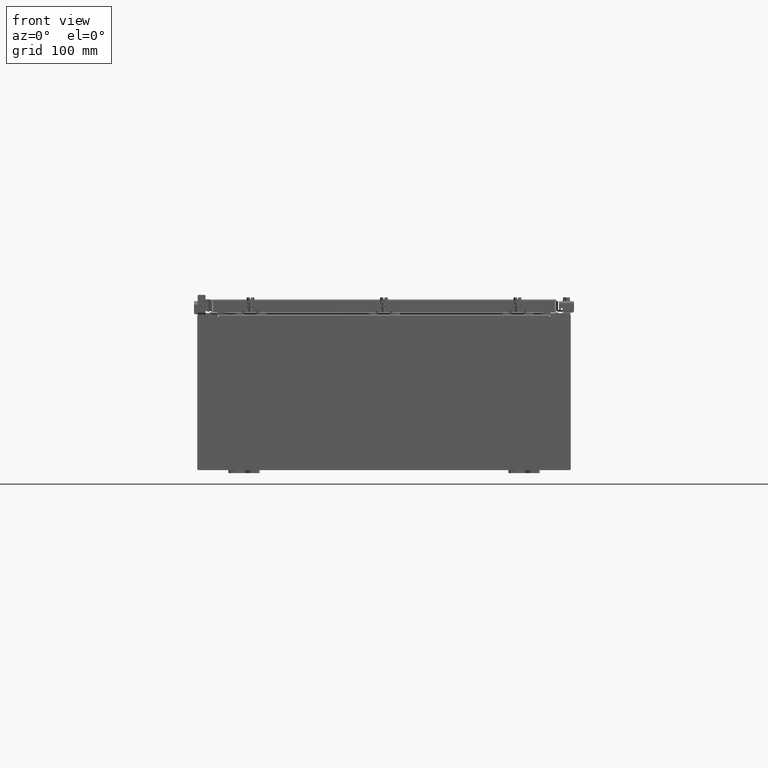
[diagram: clean part render]
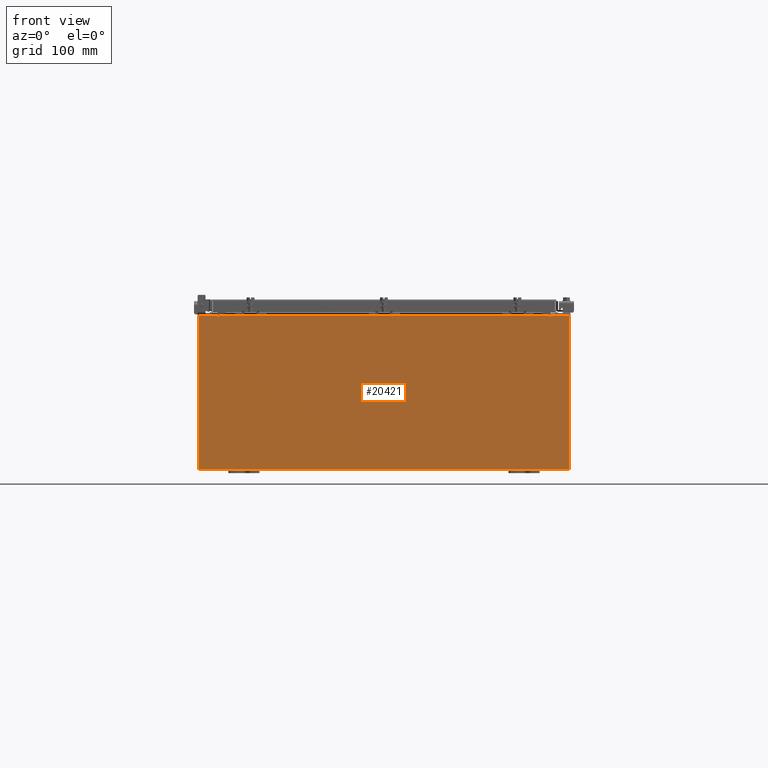
[diagram: same view with one face highlighted and labeled with its STEP entity id]
A machine part, front view. The second image highlights one B-rep face of the part: STEP entity #20421.
In plain terms, the highlighted planar face has unit normal (-0, 1, -0).
Its self-contained STEP definition (entity closure, byte-faithful):
#22 = VERTEX_POINT ( 'NONE', #7945 ) ;
#561 = VECTOR ( 'NONE', #16933, 39.37007874015748100 ) ;
#587 = EDGE_CURVE ( 'NONE', #22, #10335, #10211, .T. ) ;
#599 = EDGE_CURVE ( 'NONE', #18800, #10335, #5388, .T. ) ;
#608 = VECTOR ( 'NONE', #15508, 39.37007874015748100 ) ;
#615 = CARTESIAN_POINT ( 'NONE',  ( 10.67454999999979000, -0.0000000000000000000, -4.633366117301795800E-013 ) ) ;
#950 = VERTEX_POINT ( 'NONE', #21251 ) ;
#1480 = VERTEX_POINT ( 'NONE', #11631 ) ;
#1790 = CARTESIAN_POINT ( 'NONE',  ( -11.92530000000000000, 0.0000000000000000000, 4.925300000000000000 ) ) ;
#2034 = VERTEX_POINT ( 'NONE', #18036 ) ;
#2138 = CIRCLE ( 'NONE', #5846, 0.01867499999999949400 ) ;
#2236 = LINE ( 'NONE', #615, #11308 ) ;
#2354 = AXIS2_PLACEMENT_3D ( 'NONE', #11561, #16982, #6180 ) ;
#2421 = DIRECTION ( 'NONE',  ( -4.340572780400004900E-014, 0.0000000000000000000, -1.000000000000000000 ) ) ;
#2478 = DIRECTION ( 'NONE',  ( 1.000000000000000000, 0.0000000000000000000, 0.0000000000000000000 ) ) ;
#2857 = ORIENTED_EDGE ( 'NONE', *, *, #18849, .F. ) ;
#3317 = EDGE_CURVE ( 'NONE', #17542, #950, #12472, .T. ) ;
#3321 = VECTOR ( 'NONE', #4039, 39.37007874015748100 ) ;
#3327 = EDGE_CURVE ( 'NONE', #20892, #16663, #2236, .T. ) ;
#3699 = VERTEX_POINT ( 'NONE', #12591 ) ;
#3850 = AXIS2_PLACEMENT_3D ( 'NONE', #9045, #21646, #10897 ) ;
#3915 = VECTOR ( 'NONE', #15171, 39.37007874015748100 ) ;
#4039 = DIRECTION ( 'NONE',  ( -0.0000000000000000000, -0.0000000000000000000, 1.000000000000000000 ) ) ;
#4135 = VECTOR ( 'NONE', #7178, 39.37007874015748100 ) ;
#4292 = CARTESIAN_POINT ( 'NONE',  ( -11.92530000000000000, 0.0000000000000000000, 4.925300000000000000 ) ) ;
#4296 = ORIENTED_EDGE ( 'NONE', *, *, #599, .T. ) ;
#5388 = LINE ( 'NONE', #4292, #14465 ) ;
#5606 = DIRECTION ( 'NONE',  ( -0.0000000000000000000, 1.000000000000000000, -0.0000000000000000000 ) ) ;
#5846 = AXIS2_PLACEMENT_3D ( 'NONE', #16428, #5606, #18217 ) ;
#5861 = EDGE_CURVE ( 'NONE', #19707, #9005, #8735, .T. ) ;
#5987 = DIRECTION ( 'NONE',  ( 0.0000000000000000000, 0.0000000000000000000, -1.000000000000000000 ) ) ;
#6106 = CARTESIAN_POINT ( 'NONE',  ( -11.92530000000000000, 0.0000000000000000000, 4.925300000000000000 ) ) ;
#6165 = ORIENTED_EDGE ( 'NONE', *, *, #3327, .F. ) ;
#6180 = DIRECTION ( 'NONE',  ( 0.0000000000000000000, -0.0000000000000000000, -1.000000000000000000 ) ) ;
#7102 = CARTESIAN_POINT ( 'NONE',  ( 10.63720000000000400, 0.0000000000000000000, 0.0000000000000000000 ) ) ;
#7120 = CARTESIAN_POINT ( 'NONE',  ( -10.63720000000000400, -7.171100983368691200E-016, 4.912300000000000100 ) ) ;
#7178 = DIRECTION ( 'NONE',  ( 0.0000000000000000000, 0.0000000000000000000, 1.000000000000000000 ) ) ;
#7923 = VECTOR ( 'NONE', #19659, 39.37007874015748100 ) ;
#7945 = CARTESIAN_POINT ( 'NONE',  ( -10.67455000000000200, 0.0000000000000000000, 4.874950000000000100 ) ) ;
#8735 = LINE ( 'NONE', #9716, #3915 ) ;
#8786 = EDGE_CURVE ( 'NONE', #17542, #2034, #12019, .T. ) ;
#9005 = VERTEX_POINT ( 'NONE', #18442 ) ;
#9045 = CARTESIAN_POINT ( 'NONE',  ( -10.65587500000000200, 0.0000000000000000000, 4.874950000000000100 ) ) ;
#9210 = CARTESIAN_POINT ( 'NONE',  ( -10.63720000000000400, -7.171100983368691200E-016, 4.912300000000000100 ) ) ;
#9509 = LINE ( 'NONE', #7102, #4135 ) ;
#9543 = CARTESIAN_POINT ( 'NONE',  ( -10.67455000000000200, 0.0000000000000000000, 4.925300000000000000 ) ) ;
#9682 = CARTESIAN_POINT ( 'NONE',  ( -10.67455000000000200, -0.0000000000000000000, 0.0000000000000000000 ) ) ;
#9716 = CARTESIAN_POINT ( 'NONE',  ( 11.92530000000000000, 0.0000000000000000000, 4.925300000000000000 ) ) ;
#9895 = CARTESIAN_POINT ( 'NONE',  ( 10.67455000000000200, 0.0000000000000000000, 4.925300000000000000 ) ) ;
#10211 = LINE ( 'NONE', #9682, #561 ) ;
#10335 = VERTEX_POINT ( 'NONE', #9543 ) ;
#10897 = DIRECTION ( 'NONE',  ( 0.0000000000000000000, 0.0000000000000000000, -1.000000000000000000 ) ) ;
#11308 = VECTOR ( 'NONE', #2421, 39.37007874015748100 ) ;
#11561 = CARTESIAN_POINT ( 'NONE',  ( 0.0000000000000000000, 0.0000000000000000000, 0.0000000000000000000 ) ) ;
#11631 = CARTESIAN_POINT ( 'NONE',  ( 10.63720000000000400, 0.0000000000000000000, 4.874950000000000100 ) ) ;
#11989 = ORIENTED_EDGE ( 'NONE', *, *, #19463, .F. ) ;
#12019 = LINE ( 'NONE', #7120, #21018 ) ;
#12107 = FACE_OUTER_BOUND ( 'NONE', #14973, .T. ) ;
#12472 = LINE ( 'NONE', #18603, #16662 ) ;
#12591 = CARTESIAN_POINT ( 'NONE',  ( -11.92530000000000000, 0.0000000000000000000, -4.925300000000000000 ) ) ;
#12592 = EDGE_CURVE ( 'NONE', #9005, #3699, #20946, .T. ) ;
#13872 = CARTESIAN_POINT ( 'NONE',  ( -11.92530000000000000, 0.0000000000000000000, -4.925300000000000000 ) ) ;
#14105 = CARTESIAN_POINT ( 'NONE',  ( 10.67455000000000200, 0.0000000000000000000, 4.874950000000000100 ) ) ;
#14190 = ORIENTED_EDGE ( 'NONE', *, *, #16760, .T. ) ;
#14465 = VECTOR ( 'NONE', #2478, 39.37007874015748100 ) ;
#14973 = EDGE_LOOP ( 'NONE', ( #16664, #2857, #23028, #19600, #11989, #18438, #6165, #14190, #16355, #18090, #18024, #4296 ) ) ;
#15171 = DIRECTION ( 'NONE',  ( 0.0000000000000000000, 0.0000000000000000000, -1.000000000000000000 ) ) ;
#15188 = PLANE ( 'NONE',  #2354 ) ;
#15508 = DIRECTION ( 'NONE',  ( -1.000000000000000000, -0.0000000000000000000, -0.0000000000000000000 ) ) ;
#16054 = CARTESIAN_POINT ( 'NONE',  ( -11.92530000000000000, 0.0000000000000000000, 4.925300000000000000 ) ) ;
#16355 = ORIENTED_EDGE ( 'NONE', *, *, #5861, .T. ) ;
#16428 = CARTESIAN_POINT ( 'NONE',  ( 10.65587500000000200, 0.0000000000000000000, 4.874950000000000100 ) ) ;
#16662 = VECTOR ( 'NONE', #5987, 39.37007874015748100 ) ;
#16663 = VERTEX_POINT ( 'NONE', #14105 ) ;
#16664 = ORIENTED_EDGE ( 'NONE', *, *, #587, .F. ) ;
#16760 = EDGE_CURVE ( 'NONE', #20892, #19707, #17536, .T. ) ;
#16933 = DIRECTION ( 'NONE',  ( 0.0000000000000000000, 0.0000000000000000000, 1.000000000000000000 ) ) ;
#16982 = DIRECTION ( 'NONE',  ( 0.0000000000000000000, -1.000000000000000000, 0.0000000000000000000 ) ) ;
#17536 = LINE ( 'NONE', #16054, #7923 ) ;
#17542 = VERTEX_POINT ( 'NONE', #9210 ) ;
#18024 = ORIENTED_EDGE ( 'NONE', *, *, #20727, .T. ) ;
#18036 = CARTESIAN_POINT ( 'NONE',  ( 10.63720000000000400, 0.0000000000000000000, 4.912300000000000100 ) ) ;
#18090 = ORIENTED_EDGE ( 'NONE', *, *, #12592, .T. ) ;
#18217 = DIRECTION ( 'NONE',  ( 0.0000000000000000000, 0.0000000000000000000, -1.000000000000000000 ) ) ;
#18438 = ORIENTED_EDGE ( 'NONE', *, *, #21283, .F. ) ;
#18442 = CARTESIAN_POINT ( 'NONE',  ( 11.92530000000000000, 0.0000000000000000000, -4.925300000000000000 ) ) ;
#18603 = CARTESIAN_POINT ( 'NONE',  ( -10.63720000000000400, -0.0000000000000000000, 0.0000000000000000000 ) ) ;
#18800 = VERTEX_POINT ( 'NONE', #1790 ) ;
#18849 = EDGE_CURVE ( 'NONE', #950, #22, #19120, .T. ) ;
#19120 = CIRCLE ( 'NONE', #3850, 0.01867499999999949400 ) ;
#19463 = EDGE_CURVE ( 'NONE', #1480, #2034, #9509, .T. ) ;
#19600 = ORIENTED_EDGE ( 'NONE', *, *, #8786, .T. ) ;
#19659 = DIRECTION ( 'NONE',  ( 1.000000000000000000, 0.0000000000000000000, 0.0000000000000000000 ) ) ;
#19707 = VERTEX_POINT ( 'NONE', #22279 ) ;
#19723 = DIRECTION ( 'NONE',  ( 1.000000000000000000, 0.0000000000000000000, 0.0000000000000000000 ) ) ;
#20421 = ADVANCED_FACE ( 'NONE', ( #12107 ), #15188, .F. ) ;
#20727 = EDGE_CURVE ( 'NONE', #3699, #18800, #21925, .T. ) ;
#20892 = VERTEX_POINT ( 'NONE', #9895 ) ;
#20946 = LINE ( 'NONE', #13872, #608 ) ;
#21018 = VECTOR ( 'NONE', #19723, 39.37007874015748100 ) ;
#21251 = CARTESIAN_POINT ( 'NONE',  ( -10.63720000000000400, -0.0000000000000000000, 4.874950000000000100 ) ) ;
#21283 = EDGE_CURVE ( 'NONE', #16663, #1480, #2138, .T. ) ;
#21646 = DIRECTION ( 'NONE',  ( -0.0000000000000000000, 1.000000000000000000, -0.0000000000000000000 ) ) ;
#21925 = LINE ( 'NONE', #6106, #3321 ) ;
#22279 = CARTESIAN_POINT ( 'NONE',  ( 11.92530000000000000, 0.0000000000000000000, 4.925300000000000000 ) ) ;
#23028 = ORIENTED_EDGE ( 'NONE', *, *, #3317, .F. ) ;